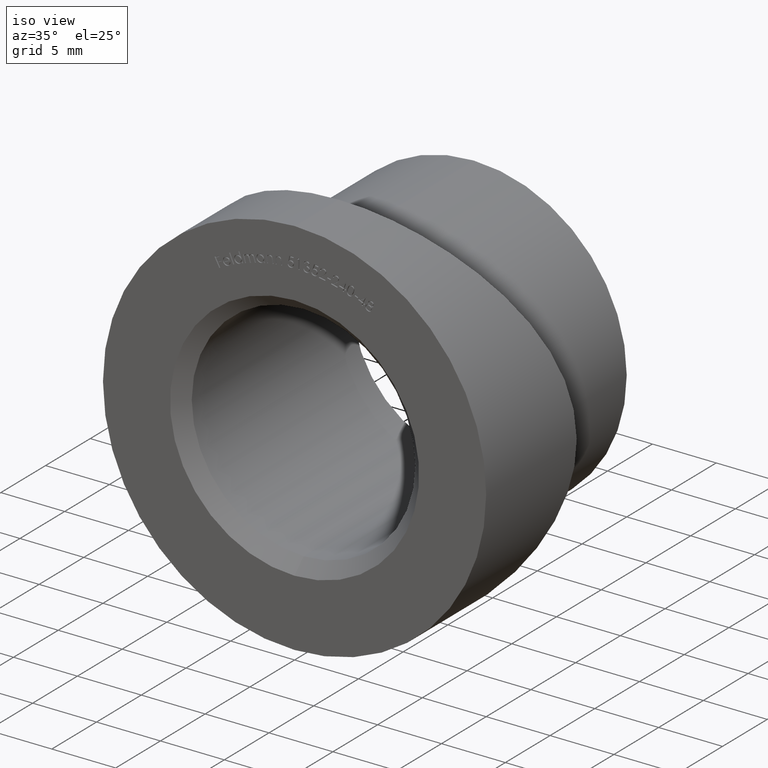
[diagram: clean part render]
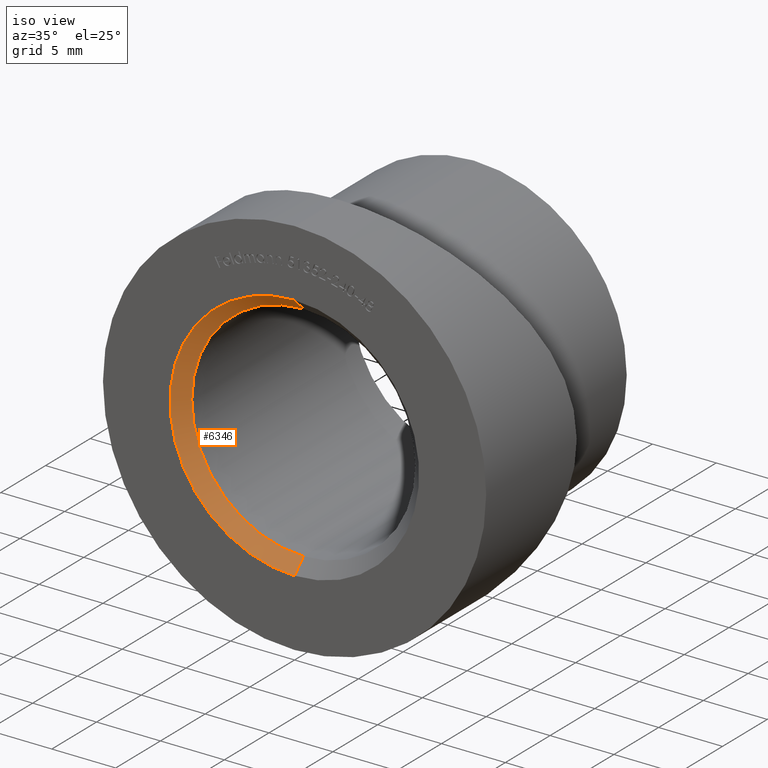
[diagram: same view with one face highlighted and labeled with its STEP entity id]
A machine part, iso view. The second image highlights one B-rep face of the part: STEP entity #6346.
In plain terms, the highlighted conical surface has half-angle 45 deg.
Its self-contained STEP definition (entity closure, byte-faithful):
#616 = VECTOR ( 'NONE', #1605, 999.9999999999998900 ) ;
#668 = ORIENTED_EDGE ( 'NONE', *, *, #3105, .F. ) ;
#777 = EDGE_LOOP ( 'NONE', ( #1391, #2011, #668, #2791 ) ) ;
#1063 = VERTEX_POINT ( 'NONE', #13932 ) ;
#1391 = ORIENTED_EDGE ( 'NONE', *, *, #4252, .F. ) ;
#1605 = DIRECTION ( 'NONE',  ( 8.659560562354926700E-017, -0.7071067811865482400, 0.7071067811865469100 ) ) ;
#1756 = AXIS2_PLACEMENT_3D ( 'NONE', #2306, #7051, #2459 ) ;
#2011 = ORIENTED_EDGE ( 'NONE', *, *, #11137, .T. ) ;
#2093 = DIRECTION ( 'NONE',  ( 0.0000000000000000000, 0.0000000000000000000, -1.000000000000000000 ) ) ;
#2306 = CARTESIAN_POINT ( 'NONE',  ( 0.0000000000000000000, 0.0000000000000000000, 0.0000000000000000000 ) ) ;
#2451 = CIRCLE ( 'NONE', #1756, 9.749999999999980500 ) ;
#2459 = DIRECTION ( 'NONE',  ( 0.0000000000000000000, 0.0000000000000000000, 1.000000000000000000 ) ) ;
#2620 = CARTESIAN_POINT ( 'NONE',  ( 0.0000000000000000000, 0.0000000000000000000, -9.749999999999980500 ) ) ;
#2791 = ORIENTED_EDGE ( 'NONE', *, *, #9539, .F. ) ;
#2799 = LINE ( 'NONE', #13059, #616 ) ;
#2817 = AXIS2_PLACEMENT_3D ( 'NONE', #8418, #8878, #2093 ) ;
#3105 = EDGE_CURVE ( 'NONE', #6004, #1063, #2451, .T. ) ;
#3110 = LINE ( 'NONE', #12325, #10506 ) ;
#4105 = CONICAL_SURFACE ( 'NONE', #2817, 9.749999999999980500, 0.7853981633974473900 ) ;
#4252 = EDGE_CURVE ( 'NONE', #6006, #11868, #12598, .T. ) ;
#5057 = DIRECTION ( 'NONE',  ( -0.0000000000000000000, -1.000000000000000000, -0.0000000000000000000 ) ) ;
#6004 = VERTEX_POINT ( 'NONE', #2620 ) ;
#6006 = VERTEX_POINT ( 'NONE', #11934 ) ;
#6346 = ADVANCED_FACE ( 'NONE', ( #7550 ), #4105, .F. ) ;
#6386 = CARTESIAN_POINT ( 'NONE',  ( 1.071565949253932900E-015, 0.9999999999999904500, -8.749999999999992900 ) ) ;
#7051 = DIRECTION ( 'NONE',  ( 0.0000000000000000000, 1.000000000000000000, 0.0000000000000000000 ) ) ;
#7550 = FACE_OUTER_BOUND ( 'NONE', #777, .T. ) ;
#8418 = CARTESIAN_POINT ( 'NONE',  ( 0.0000000000000000000, 0.0000000000000000000, 0.0000000000000000000 ) ) ;
#8449 = AXIS2_PLACEMENT_3D ( 'NONE', #11944, #5057, #9659 ) ;
#8878 = DIRECTION ( 'NONE',  ( -0.0000000000000000000, -1.000000000000000000, -0.0000000000000000000 ) ) ;
#9539 = EDGE_CURVE ( 'NONE', #11868, #6004, #3110, .T. ) ;
#9659 = DIRECTION ( 'NONE',  ( 0.0000000000000000000, 0.0000000000000000000, 1.000000000000000000 ) ) ;
#10506 = VECTOR ( 'NONE', #14618, 999.9999999999998900 ) ;
#11137 = EDGE_CURVE ( 'NONE', #6006, #1063, #2799, .T. ) ;
#11868 = VERTEX_POINT ( 'NONE', #6386 ) ;
#11934 = CARTESIAN_POINT ( 'NONE',  ( 0.0000000000000000000, 0.9999999999999904500, 8.749999999999992900 ) ) ;
#11944 = CARTESIAN_POINT ( 'NONE',  ( 0.0000000000000000000, 0.9999999999999904500, 0.0000000000000000000 ) ) ;
#12325 = CARTESIAN_POINT ( 'NONE',  ( 0.0000000000000000000, 0.0000000000000000000, -9.749999999999980500 ) ) ;
#12598 = CIRCLE ( 'NONE', #8449, 8.749999999999992900 ) ;
#13059 = CARTESIAN_POINT ( 'NONE',  ( 1.194030629168667100E-015, 0.0000000000000000000, 9.749999999999980500 ) ) ;
#13932 = CARTESIAN_POINT ( 'NONE',  ( 1.194030629168667100E-015, 0.0000000000000000000, 9.749999999999980500 ) ) ;
#14618 = DIRECTION ( 'NONE',  ( 0.0000000000000000000, -0.7071067811865482400, -0.7071067811865469100 ) ) ;